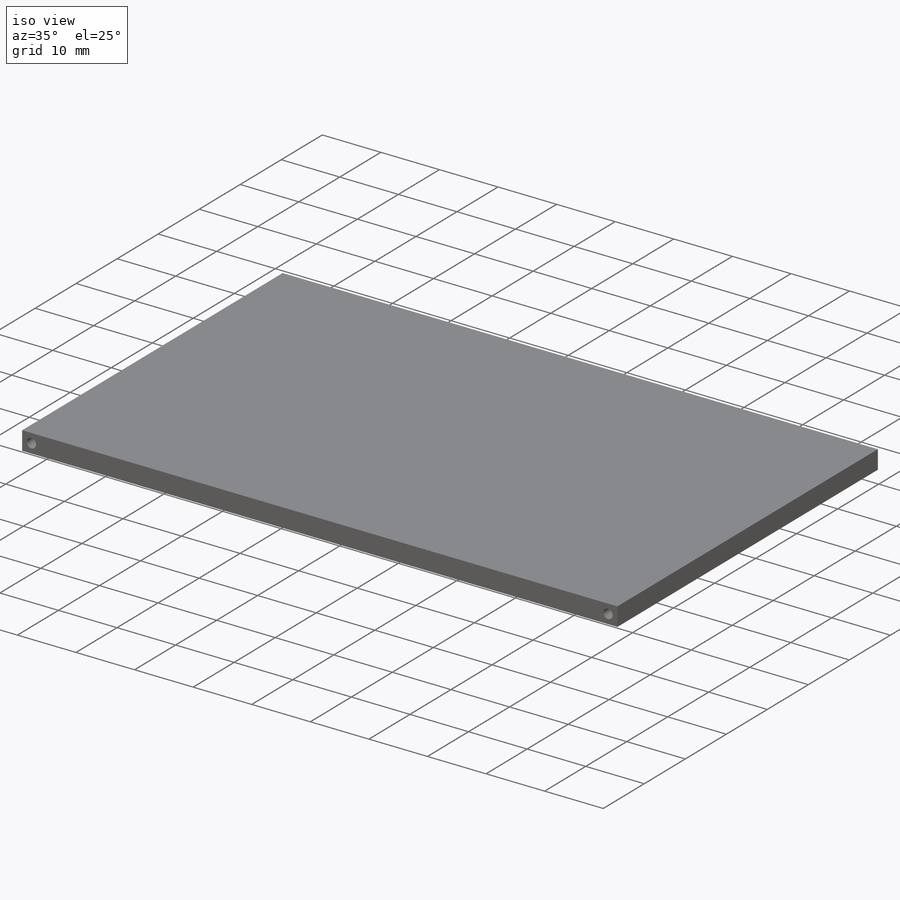
[diagram: iso view]
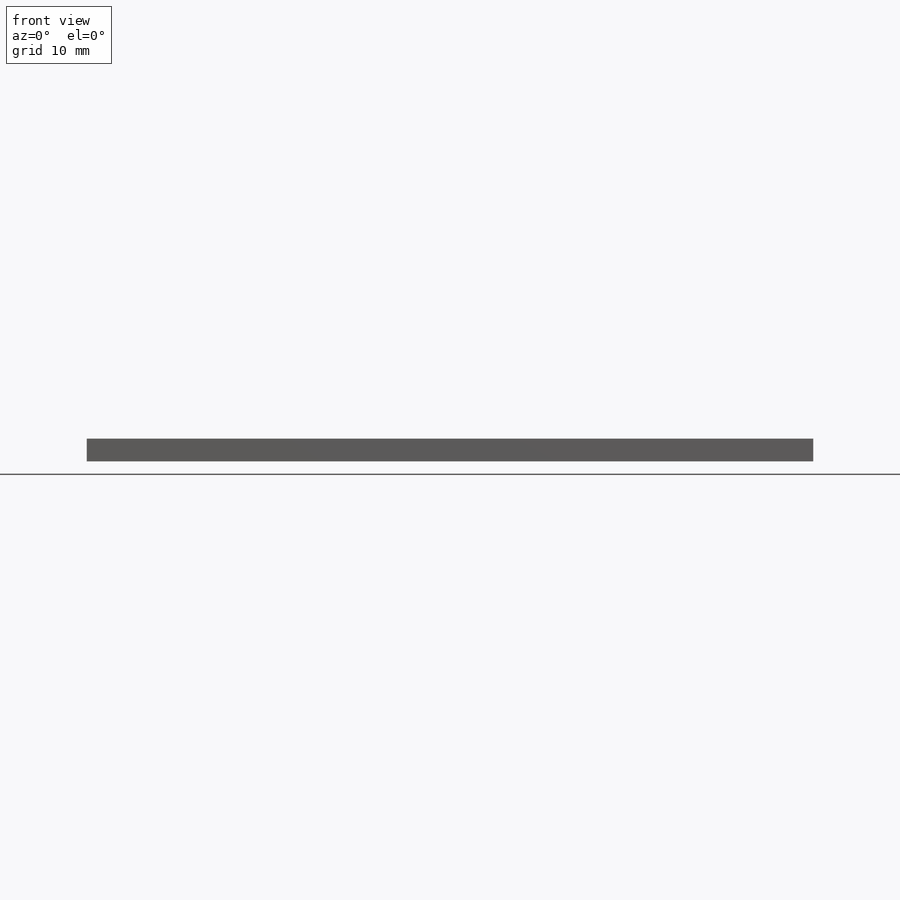
[diagram: front view]
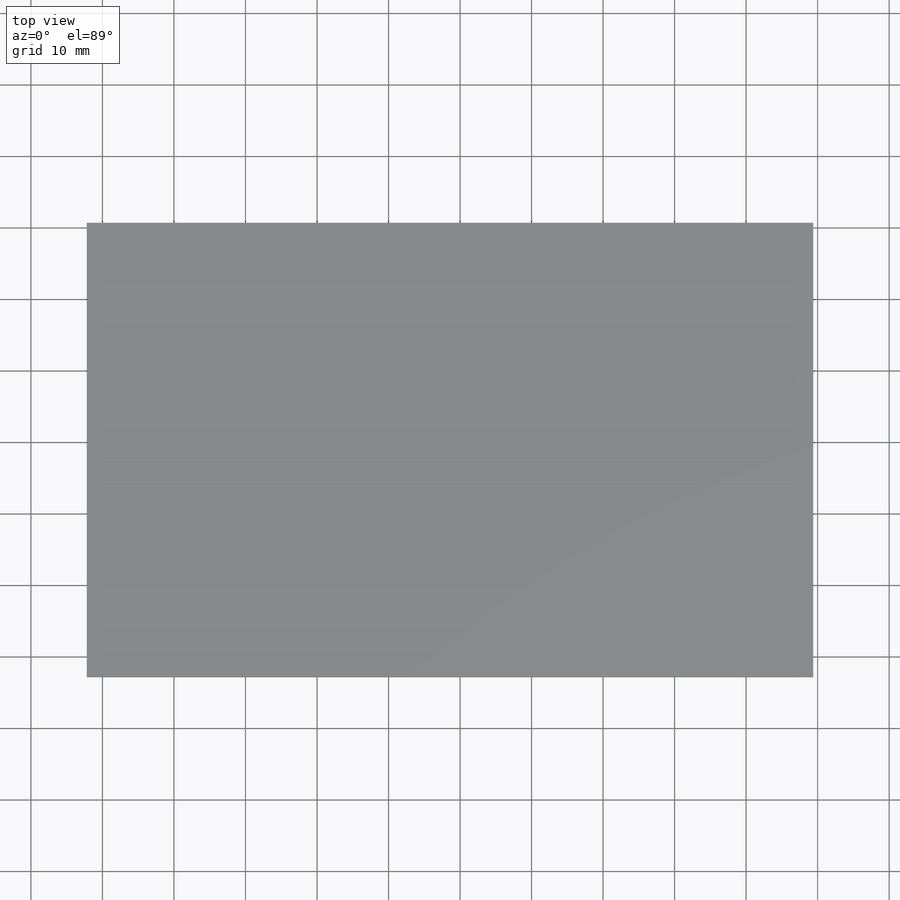
[diagram: top view]
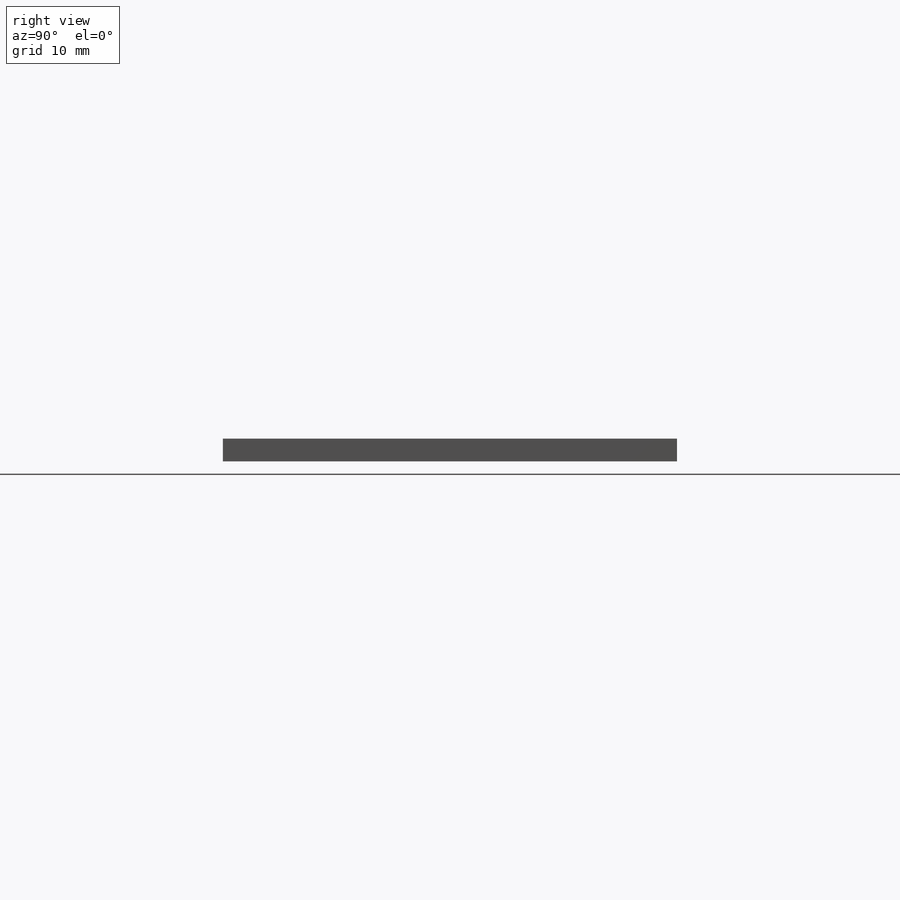
[diagram: right view]
SOLIDWORKS PART (.sldprt)
format: sldprt  version: not decoded by parser v0  size: 162,816 bytes
history: native  units: mm
features: sketch x3, cut_extrude x2, material x1, extrude x1 (+13 scaffold rows collapsed)
feature tree (20):
  scaffold x13  (default folders/planes/origin — collapsed)
  material  "Acrylic (Medium-high impact)"
  sketch  "Sketch1"  dims[c1.D9=2.2606mm c1.D1=101.6mm c1.D2=63.5mm c1.D3=47.8mm c1.D4=51.9mm c1.D5=4.7mm c1.D6=50.8mm c1.D7=15.2mm c1.D8=27.9mm c2.D9=50.8mm c2.D10=21.59mm c2.D11=7.85mm c2.D12=7.85mm]
  extrude  "Boss-Extrude1"  Depth=3.175mm
  sketch  "Sketch2"  dims[D1=1.5875mm D4=1.5875mm D2=1.5875mm D3=1.5875mm D5=1.5875mm D6=1.5875mm]
  cut_extrude  "Cut-Extrude1"  Depth=6.35mm
  sketch  "Sketch3"  dims[c1.D1=1.5875mm c1.D3=1.5875mm c1.D4=1.5875mm c1.D2=1.5875mm c2.D3=1.5875mm c2.D5=1.5875mm c2.D6=1.5875mm]
  cut_extrude  "Cut-Extrude2"  Depth=6.35mm
decode coverage: 6 of 6 modeling features carry decoded parameters
note: suppression state not decoded; provenance and decode notes live in map.json
